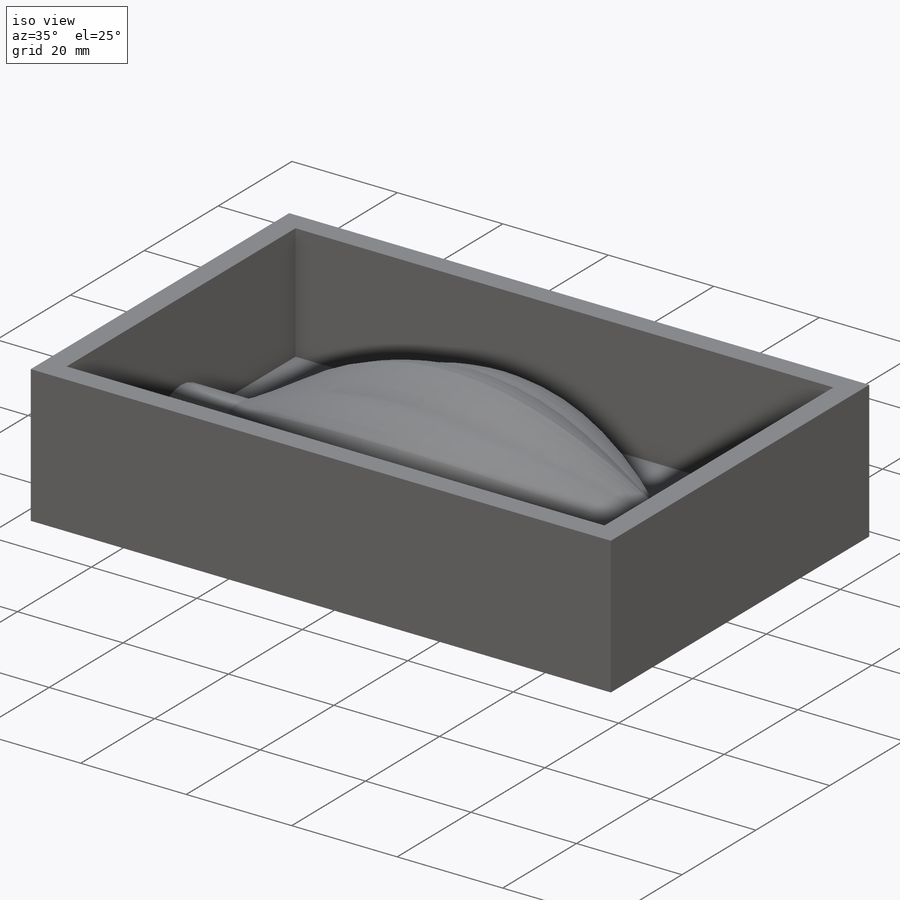
[diagram: iso view]
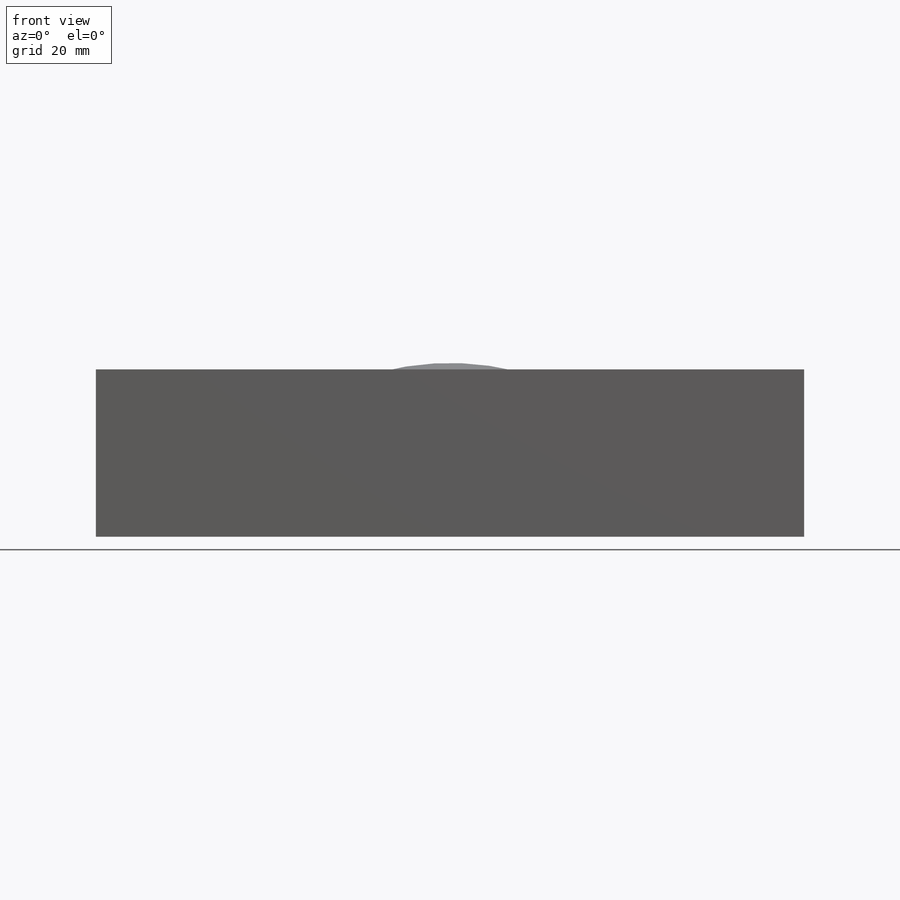
[diagram: front view]
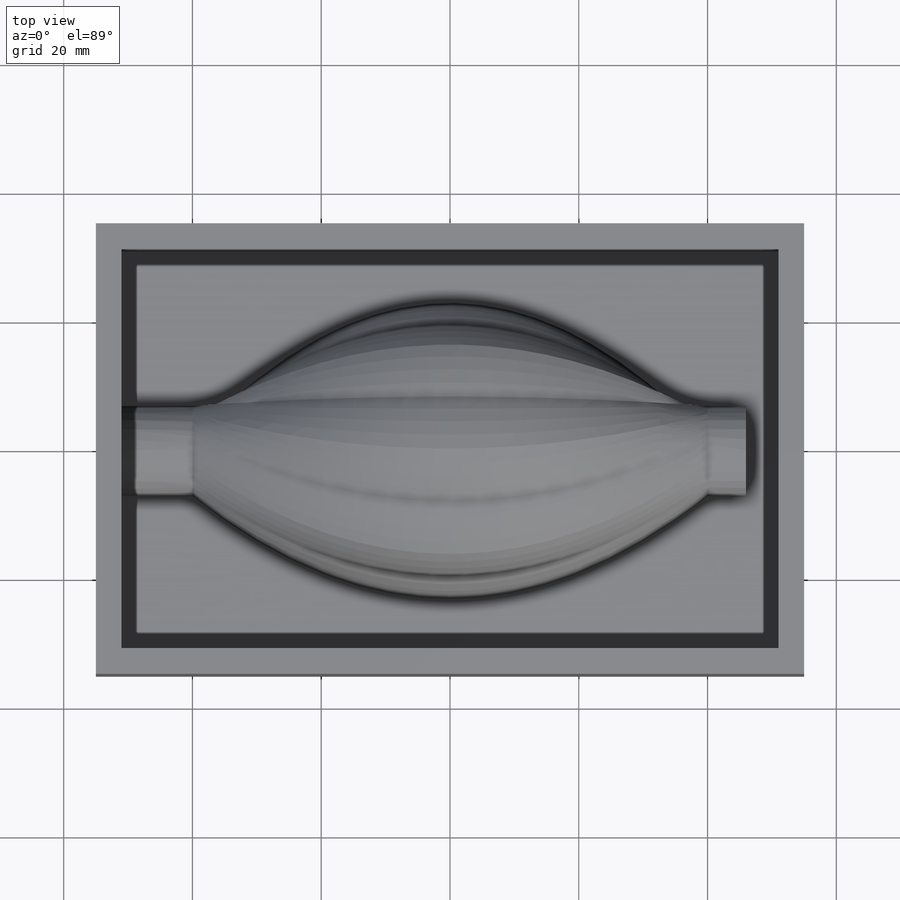
[diagram: top view]
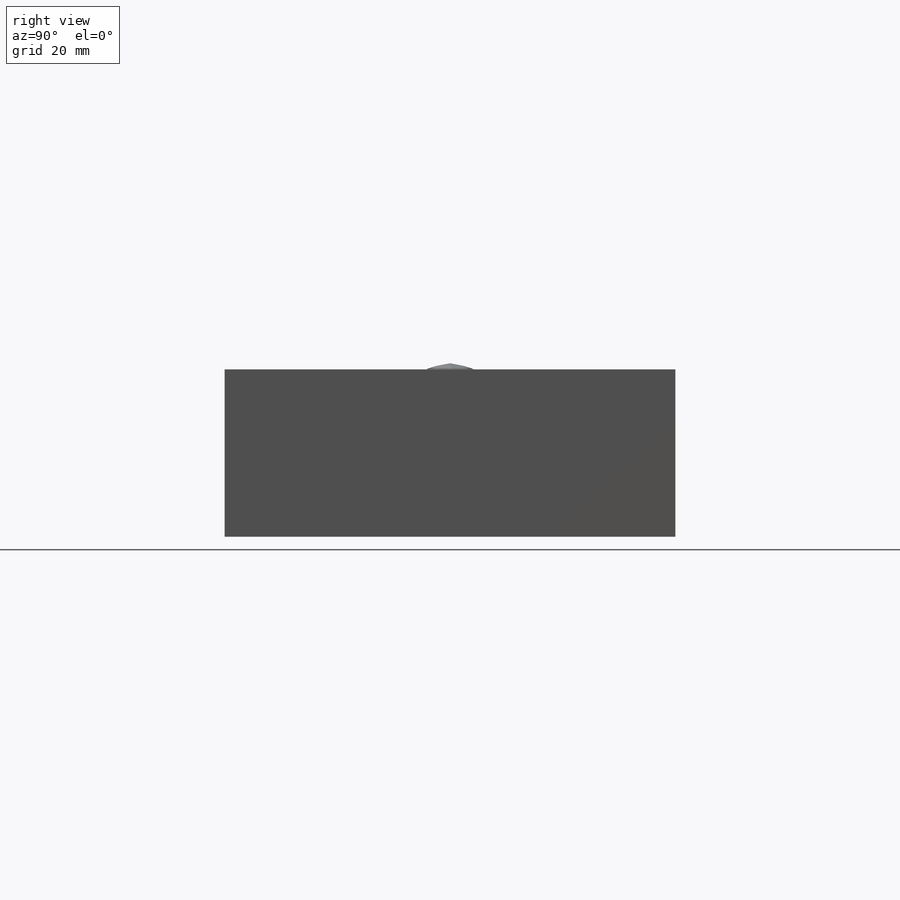
[diagram: right view]
SOLIDWORKS PART (.sldprt)
format: sldprt  version: not decoded by parser v0  size: 356,864 bytes
history: native  units: mm
features: sketch x7, extrude x4, plane x2, material x1 (+13 scaffold rows collapsed)
feature tree (27):
  scaffold x13  (default folders/planes/origin — collapsed)
  material  "Material <not specified>"
  sketch  "Sketch1"  dims[c1.D1=40.0mm c1.D3=~17.603177mm c1.D2=23.0mm c2.D1=46.0mm c2.D3=8.0]
  plane  "Plane2"  Offset=40mm
  plane  "Plane3"  Offset=40mm
  sketch  "Sketch2"  dims[D1=~5.298894mm]
  sketch  "Sketch3"  dims[D1=~0.325984mm]
  sketch  "Sketch11"  dims[D1=0.0mm]
  extrude  "Boss-Extrude8"  Depth=15mm
  sketch  "Sketch12"  dims[D1=~0.262664mm]
  extrude  "Boss-Extrude9"  Depth=6mm
  sketch  "Sketch7"  dims[c1.D4=~21.183176mm c1.D1=~61.942424mm c1.D2=~97.653946mm c2.D1=110.0mm c2.D2=70.0mm c2.D3=~4.927402mm c2.D4=~19.73409mm c3.D3=4.0mm]
  extrude  "Boss-Extrude10"  Depth=22mm
  extrude  "Boss-Extrude11"  [1 undecoded]
  sketch  "Sketch7<5>"  dims[D1=4.0mm]
decode coverage: 10 of 11 modeling features carry decoded parameters
note: ~ marks probable driven/reference dimensions
note: 1 parameter value undecoded
note: suppression state not decoded; provenance and decode notes live in map.json
